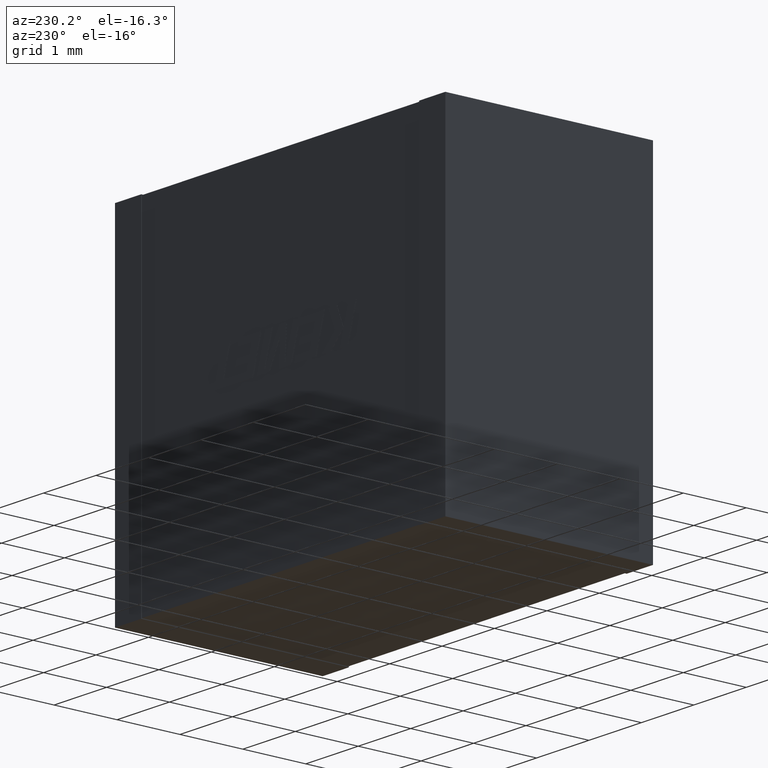
[diagram: clean part render]
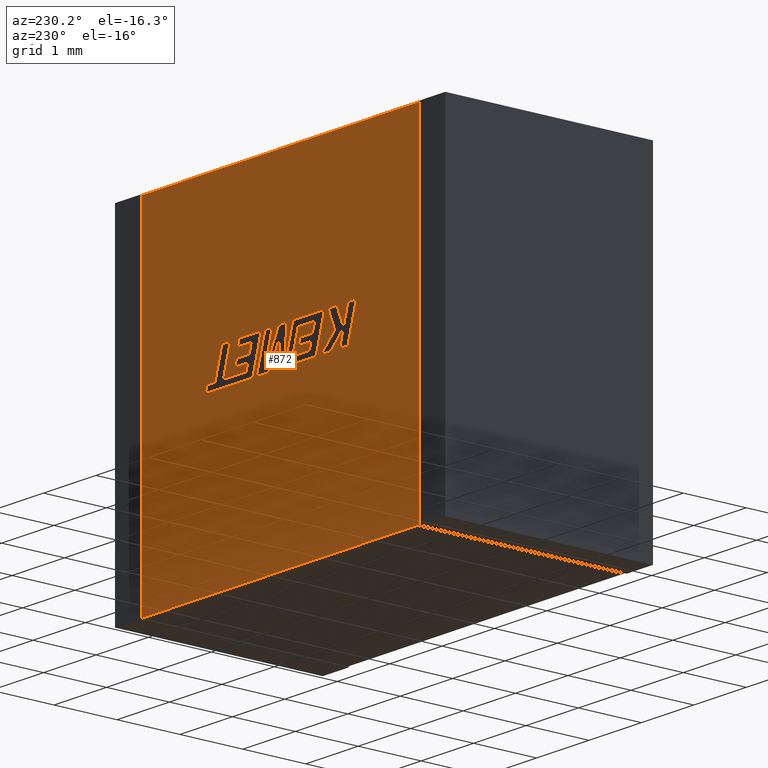
[diagram: same view with one face highlighted and labeled with its STEP entity id]
A machine part, auxiliary view. The second image highlights one B-rep face of the part: STEP entity #872.
In plain terms, the highlighted planar face has unit normal (0, -1, 0).
Its self-contained STEP definition (entity closure, byte-faithful):
#65 = DIRECTION ( 'NONE',  ( 1.000000000000000000, 0.000000000000000000, 0.000000000000000000 ) ) ;
#86 = LINE ( 'NONE', #857, #2278 ) ;
#112 = EDGE_CURVE ( 'NONE', #1722, #1497, #388, .T. ) ;
#159 = CARTESIAN_POINT ( 'NONE',  ( 5.790000000000000036, 3.279999999999999805, 0.000000000000000000 ) ) ;
#160 = VECTOR ( 'NONE', #1923, 1000.000000000000000 ) ;
#233 = EDGE_LOOP ( 'NONE', ( #1803, #1394, #2000, #1530 ) ) ;
#273 = DIRECTION ( 'NONE',  ( -1.000000000000000000, -0.000000000000000000, -0.000000000000000000 ) ) ;
#388 = LINE ( 'NONE', #2138, #1243 ) ;
#416 = CARTESIAN_POINT ( 'NONE',  ( 0.4899999999999999911, 3.279999999999999805, -5.380000000000000782 ) ) ;
#789 = CARTESIAN_POINT ( 'NONE',  ( 5.790000000000000036, 3.279999999999999805, -5.380000000000000782 ) ) ;
#857 = CARTESIAN_POINT ( 'NONE',  ( 0.000000000000000000, 3.279999999999999805, 0.000000000000000000 ) ) ;
#872 = ADVANCED_FACE ( 'NONE', ( #1412 ), #1564, .F. ) ;
#988 = EDGE_CURVE ( 'NONE', #1194, #2466, #1107, .T. ) ;
#1036 = LINE ( 'NONE', #1613, #2347 ) ;
#1107 = LINE ( 'NONE', #159, #160 ) ;
#1194 = VERTEX_POINT ( 'NONE', #789 ) ;
#1243 = VECTOR ( 'NONE', #1757, 1000.000000000000000 ) ;
#1284 = CARTESIAN_POINT ( 'NONE',  ( 0.4899999999999999911, 3.279999999999999805, 0.000000000000000000 ) ) ;
#1352 = EDGE_CURVE ( 'NONE', #1194, #1497, #1036, .T. ) ;
#1394 = ORIENTED_EDGE ( 'NONE', *, *, #1352, .T. ) ;
#1412 = FACE_OUTER_BOUND ( 'NONE', #233, .T. ) ;
#1497 = VERTEX_POINT ( 'NONE', #416 ) ;
#1530 = ORIENTED_EDGE ( 'NONE', *, *, #2245, .T. ) ;
#1564 = PLANE ( 'NONE',  #1942 ) ;
#1613 = CARTESIAN_POINT ( 'NONE',  ( 0.000000000000000000, 3.279999999999999805, -5.380000000000000782 ) ) ;
#1722 = VERTEX_POINT ( 'NONE', #1284 ) ;
#1757 = DIRECTION ( 'NONE',  ( 0.000000000000000000, 0.000000000000000000, -1.000000000000000000 ) ) ;
#1803 = ORIENTED_EDGE ( 'NONE', *, *, #988, .F. ) ;
#1923 = DIRECTION ( 'NONE',  ( -0.000000000000000000, 0.000000000000000000, 1.000000000000000000 ) ) ;
#1942 = AXIS2_PLACEMENT_3D ( 'NONE', #2331, #2339, #2155 ) ;
#2000 = ORIENTED_EDGE ( 'NONE', *, *, #112, .F. ) ;
#2138 = CARTESIAN_POINT ( 'NONE',  ( 0.4899999999999999911, 3.279999999999999805, 0.000000000000000000 ) ) ;
#2155 = DIRECTION ( 'NONE',  ( 0.000000000000000000, -0.000000000000000000, -1.000000000000000000 ) ) ;
#2245 = EDGE_CURVE ( 'NONE', #1722, #2466, #86, .T. ) ;
#2278 = VECTOR ( 'NONE', #65, 1000.000000000000000 ) ;
#2287 = CARTESIAN_POINT ( 'NONE',  ( 5.790000000000000036, 3.279999999999999805, 0.000000000000000000 ) ) ;
#2331 = CARTESIAN_POINT ( 'NONE',  ( 0.000000000000000000, 3.279999999999999805, 0.000000000000000000 ) ) ;
#2339 = DIRECTION ( 'NONE',  ( 0.000000000000000000, -1.000000000000000000, 0.000000000000000000 ) ) ;
#2347 = VECTOR ( 'NONE', #273, 1000.000000000000000 ) ;
#2466 = VERTEX_POINT ( 'NONE', #2287 ) ;